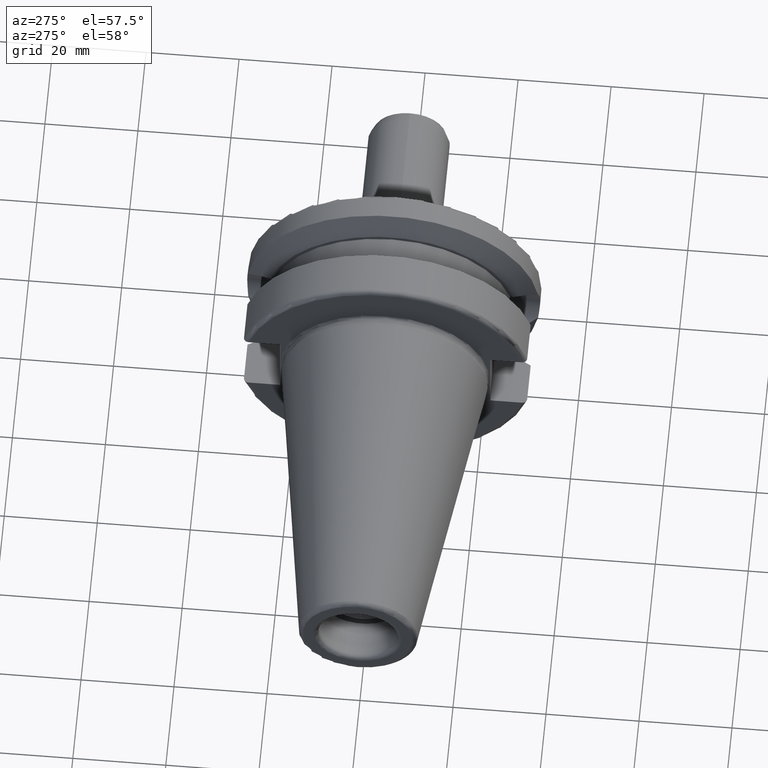
[diagram: clean part render]
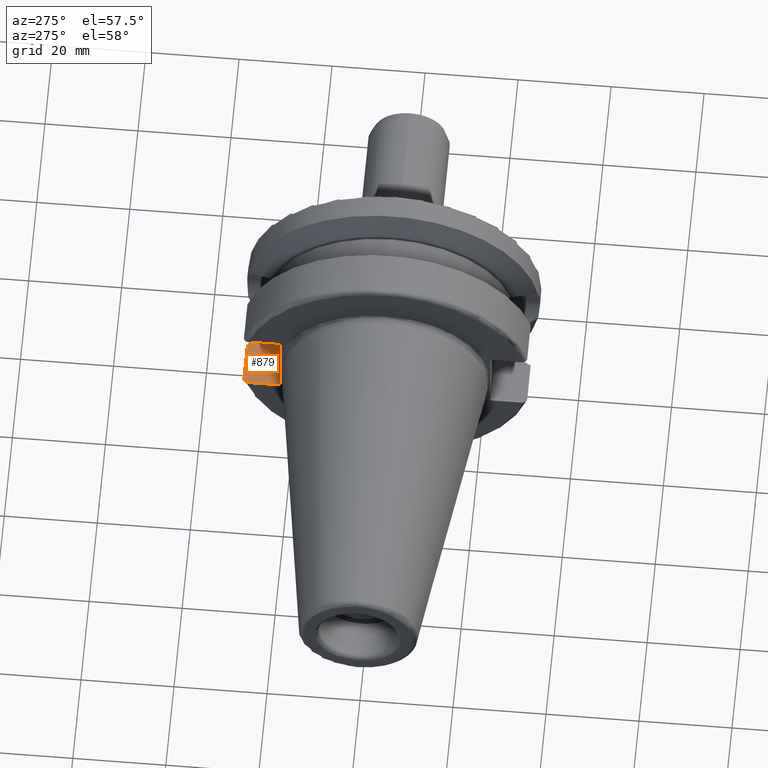
[diagram: same view with one face highlighted and labeled with its STEP entity id]
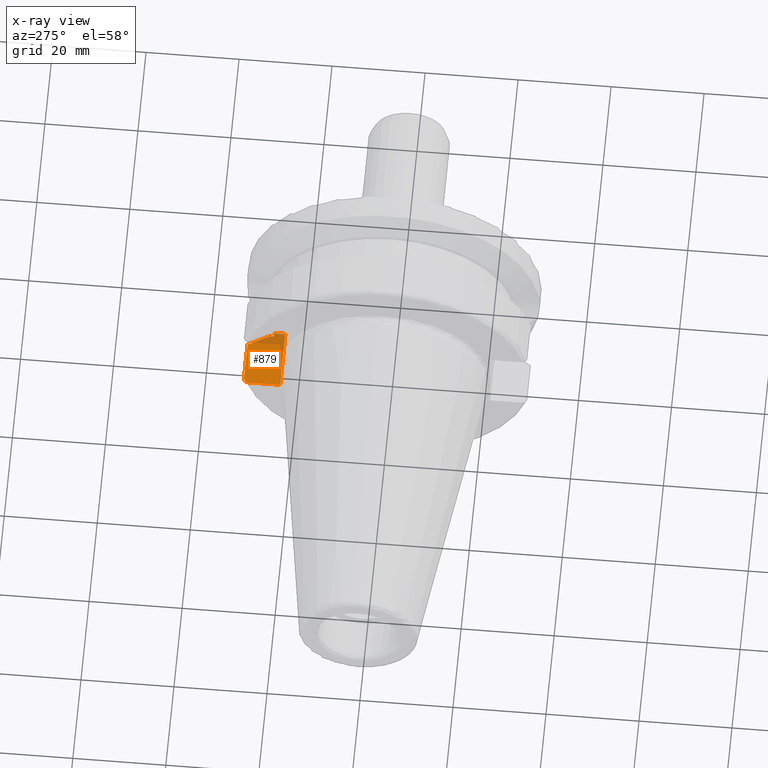
[diagram: x-ray of the same camera — body ghosted, the highlighted face saturated]
A machine part, auxiliary view. The second image highlights one B-rep face of the part: STEP entity #879.
The next image is the same camera in x-ray: the body ghosted, the highlighted face saturated — about 14% of this face is hidden behind the body in this view.
In plain terms, the highlighted planar face has unit normal (0, 0, -1).
Its self-contained STEP definition (entity closure, byte-faithful):
#17=(
BOUNDED_CURVE()
B_SPLINE_CURVE(2,(#1760,#1761,#1762),.UNSPECIFIED.,.F.,.F.)
B_SPLINE_CURVE_WITH_KNOTS((3,3),(0.,0.52358279083281),.UNSPECIFIED.)
CURVE()
GEOMETRIC_REPRESENTATION_ITEM()
RATIONAL_B_SPLINE_CURVE((1.,1.00307360097546,1.))
REPRESENTATION_ITEM('')
);
#27=PLANE('',#987);
#167=FACE_OUTER_BOUND('',#224,.T.);
#224=EDGE_LOOP('',(#745,#746,#747,#748,#749,#750,#751,#752));
#267=B_SPLINE_CURVE_WITH_KNOTS('',3,(#1770,#1771,#1772,#1773,#1774,#1775,
#1776,#1777,#1778,#1779),.UNSPECIFIED.,.F.,.F.,(4,2,2,2,4),(-0.150751871388631,
-0.111946181815504,-0.0738743445372396,-0.0366169489027566,0.),
 .UNSPECIFIED.);
#299=LINE('',#1746,#347);
#300=LINE('',#1756,#348);
#301=LINE('',#1766,#349);
#302=LINE('',#1782,#350);
#310=LINE('',#1829,#358);
#311=LINE('',#1830,#359);
#347=VECTOR('',#1168,10.);
#348=VECTOR('',#1173,10.);
#349=VECTOR('',#1182,10.);
#350=VECTOR('',#1189,10.);
#358=VECTOR('',#1203,10.);
#359=VECTOR('',#1204,10.);
#419=VERTEX_POINT('',#1743);
#420=VERTEX_POINT('',#1745);
#421=VERTEX_POINT('',#1754);
#422=VERTEX_POINT('',#1758);
#423=VERTEX_POINT('',#1764);
#424=VERTEX_POINT('',#1768);
#425=VERTEX_POINT('',#1781);
#436=VERTEX_POINT('',#1828);
#526=EDGE_CURVE('',#419,#420,#299,.T.);
#529=EDGE_CURVE('',#421,#419,#300,.T.);
#531=EDGE_CURVE('',#422,#421,#17,.T.);
#533=EDGE_CURVE('',#423,#422,#301,.T.);
#535=EDGE_CURVE('',#424,#423,#267,.T.);
#536=EDGE_CURVE('',#425,#420,#302,.T.);
#549=EDGE_CURVE('',#436,#424,#310,.T.);
#550=EDGE_CURVE('',#425,#436,#311,.T.);
#745=ORIENTED_EDGE('',*,*,#526,.F.);
#746=ORIENTED_EDGE('',*,*,#529,.F.);
#747=ORIENTED_EDGE('',*,*,#531,.F.);
#748=ORIENTED_EDGE('',*,*,#533,.F.);
#749=ORIENTED_EDGE('',*,*,#535,.F.);
#750=ORIENTED_EDGE('',*,*,#549,.F.);
#751=ORIENTED_EDGE('',*,*,#550,.F.);
#752=ORIENTED_EDGE('',*,*,#536,.T.);
#879=ADVANCED_FACE('',(#167),#27,.F.);
#987=AXIS2_PLACEMENT_3D('',#1827,#1201,#1202);
#1168=DIRECTION('',(1.,0.,0.));
#1173=DIRECTION('',(0.,-1.,0.));
#1182=DIRECTION('',(1.,0.,0.));
#1189=DIRECTION('',(0.,1.,0.));
#1201=DIRECTION('center_axis',(8.57315076930623E-17,0.,-1.));
#1202=DIRECTION('ref_axis',(-1.,0.,-8.57315076930623E-17));
#1203=DIRECTION('',(0.,1.,0.));
#1204=DIRECTION('',(-1.,0.,-8.57315076930623E-17));
#1743=CARTESIAN_POINT('',(14.1,25.0377215417058,-8.05));
#1745=CARTESIAN_POINT('',(14.95,25.0377215417058,-8.05));
#1746=CARTESIAN_POINT('',(16.6,25.0377215417058,-8.05));
#1754=CARTESIAN_POINT('',(14.1,25.8705666509569,-8.05));
#1756=CARTESIAN_POINT('',(14.1,24.45,-8.05));
#1758=CARTESIAN_POINT('',(11.5690363073382,30.4540227227866,-8.05));
#1760=CARTESIAN_POINT('Ctrl Pts',(11.5690363073382,30.4540227227866,-8.05));
#1761=CARTESIAN_POINT('Ctrl Pts',(12.9374976962938,27.989970265181,-8.05));
#1762=CARTESIAN_POINT('Ctrl Pts',(14.1,25.8705666509569,-8.05));
#1764=CARTESIAN_POINT('',(2.99999999999999,30.4540227227866,-8.05));
#1766=CARTESIAN_POINT('',(7.28451815366907,30.4540227227866,-8.05));
#1768=CARTESIAN_POINT('',(1.99999999999999,29.4184890842477,-8.05));
#1770=CARTESIAN_POINT('Ctrl Pts',(1.99999999999999,29.4184890842477,-8.05));
#1771=CARTESIAN_POINT('Ctrl Pts',(1.99999999999999,29.5478413828248,-8.05));
#1772=CARTESIAN_POINT('Ctrl Pts',(2.02950258743517,29.7002346307938,-8.05));
#1773=CARTESIAN_POINT('Ctrl Pts',(2.12587454939785,29.9376810968085,-8.05));
#1774=CARTESIAN_POINT('Ctrl Pts',(2.2089547883793,30.0653098968133,-8.05));
#1775=CARTESIAN_POINT('Ctrl Pts',(2.38465986426588,30.2446912007727,-8.05));
#1776=CARTESIAN_POINT('Ctrl Pts',(2.50758665841081,30.3289456947341,-8.05));
#1777=CARTESIAN_POINT('Ctrl Pts',(2.73442803339431,30.4247631098996,-8.05));
#1778=CARTESIAN_POINT('Ctrl Pts',(2.87794350365748,30.4540227227866,-8.05));
#1779=CARTESIAN_POINT('Ctrl Pts',(3.,30.4540227227866,-8.05));
#1781=CARTESIAN_POINT('',(14.95,22.6,-8.05));
#1782=CARTESIAN_POINT('',(14.95,22.6,-8.05));
#1827=CARTESIAN_POINT('Origin',(14.95,22.6,-8.05));
#1828=CARTESIAN_POINT('',(1.99999999999999,22.6,-8.05));
#1829=CARTESIAN_POINT('',(1.99999999999999,26.55,-8.05));
#1830=CARTESIAN_POINT('',(14.95,22.6,-8.05));